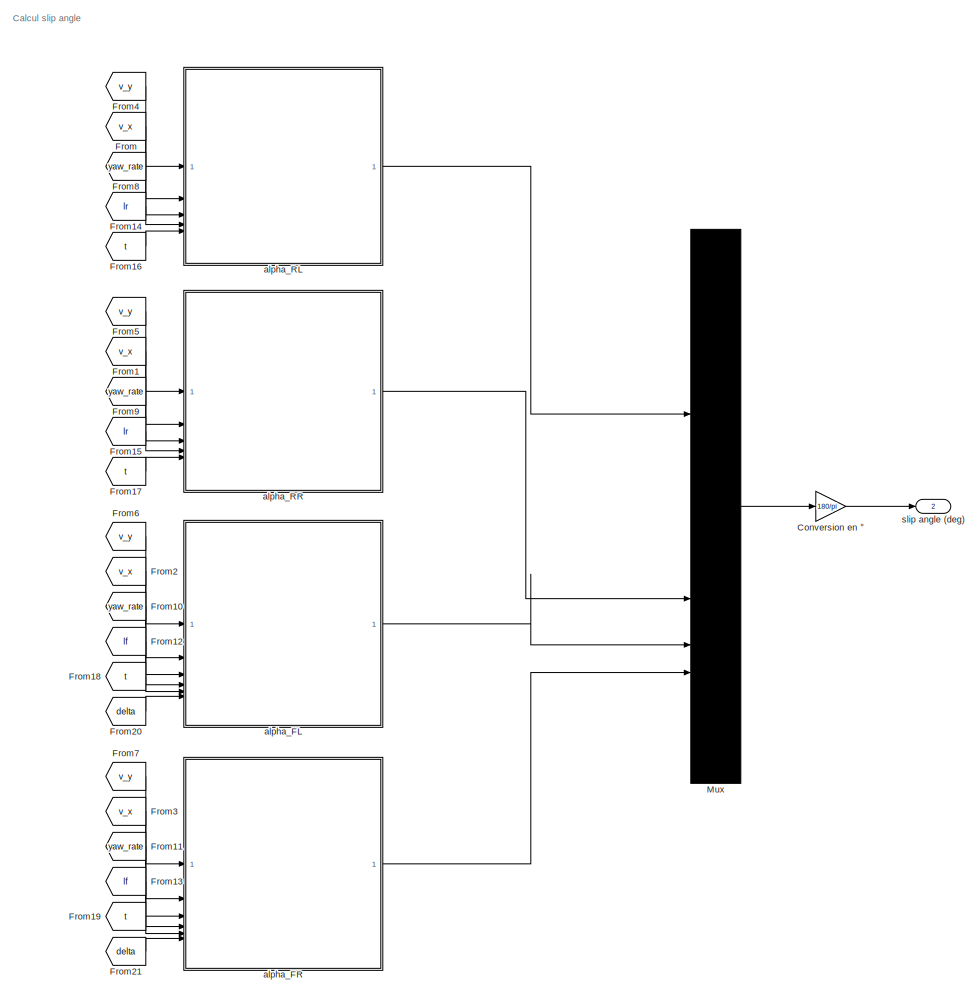
[diagram: root canvas - part 1/3, top center region]
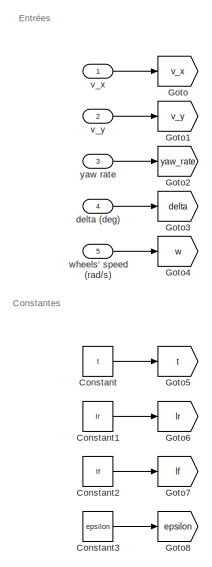
[diagram: root canvas - part 2/3, top left region]
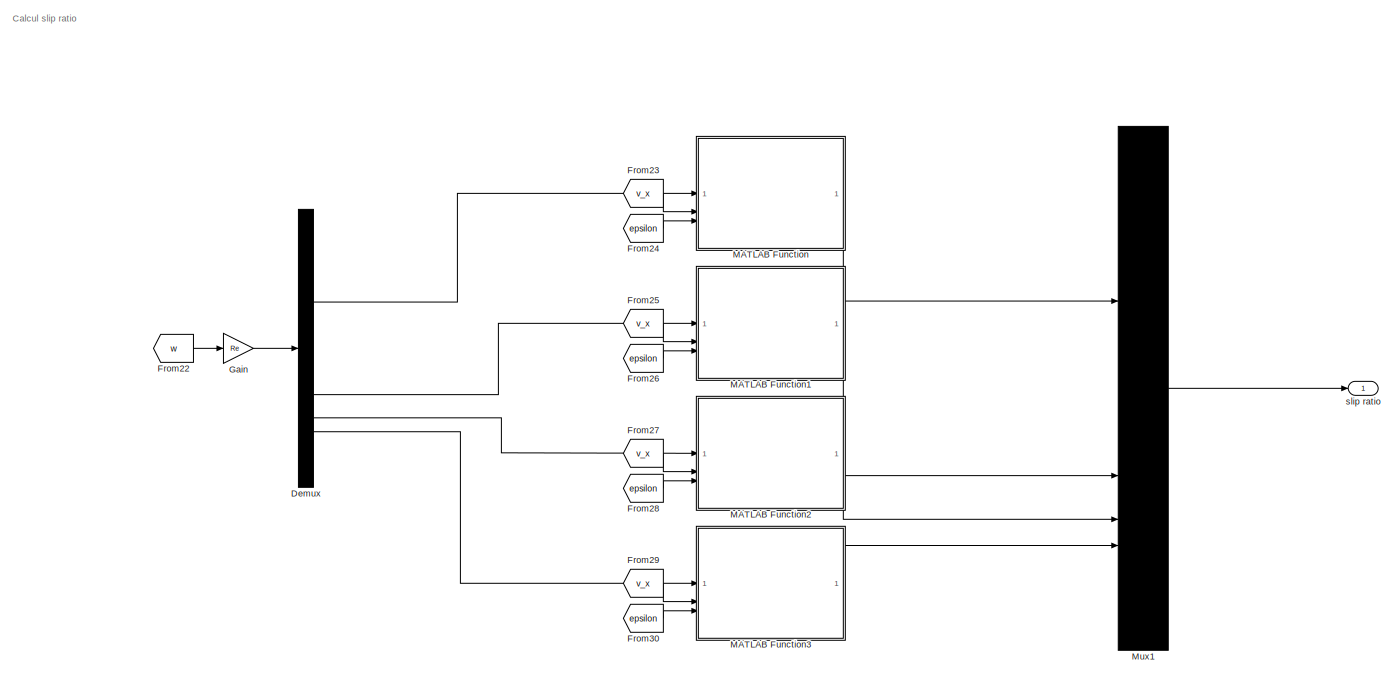
[diagram: root canvas - part 3/3, full width, bottom band]
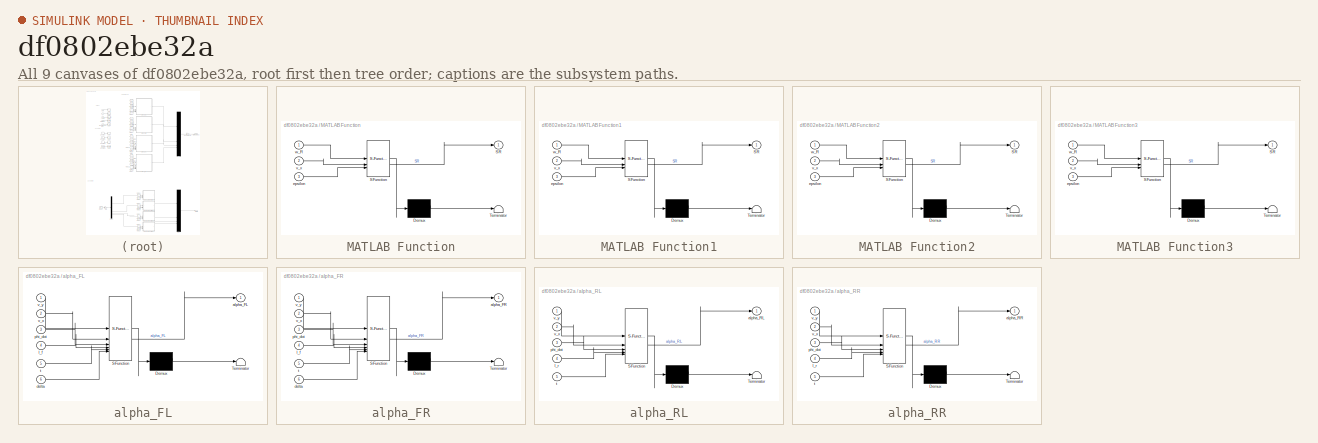
[diagram: thumbnail index - all 9 canvases of the model, root first then tree order]
MODEL slx_df0802ebe32a
KIND model
CONFIG AbsTol = auto
CONFIG EnableMultiTasking = off
CONFIG FixedStep = Ts
CONFIG MaxStep = auto
CONFIG MinStep = auto
CONFIG RelTol = 1e-3
CONFIG SampleTimeConstraint = Unconstrained
CONFIG SolverName = FixedStepDiscrete
CONFIG StartTime = 0.0
CONFIG StopTime = 10.0
BLOCK [Constant] Constant
  Value = t
BLOCK [Constant] Constant1
  Value = lr
BLOCK [Constant] Constant2
  Value = lf
BLOCK [Constant] Constant3
  Value = epsilon
BLOCK [Gain] Conversion en °
  Gain = 180/pi
BLOCK [Demux] Demux
BLOCK [From] From
  GotoTag = v_x
BLOCK [From] From1
  GotoTag = v_x
BLOCK [From] From10
  GotoTag = yaw_rate
BLOCK [From] From11
  GotoTag = yaw_rate
BLOCK [From] From12
  GotoTag = lf
BLOCK [From] From13
  GotoTag = lf
BLOCK [From] From14
  GotoTag = lr
BLOCK [From] From15
  GotoTag = lr
BLOCK [From] From16
  GotoTag = t
BLOCK [From] From17
  GotoTag = t
BLOCK [From] From18
  GotoTag = t
BLOCK [From] From19
  GotoTag = t
BLOCK [From] From2
  GotoTag = v_x
BLOCK [From] From20
  GotoTag = delta
BLOCK [From] From21
  GotoTag = delta
BLOCK [From] From22
  GotoTag = w
BLOCK [From] From23
  GotoTag = v_x
BLOCK [From] From24
  GotoTag = epsilon
BLOCK [From] From25
  GotoTag = v_x
BLOCK [From] From26
  GotoTag = epsilon
BLOCK [From] From27
  GotoTag = v_x
BLOCK [From] From28
  GotoTag = epsilon
BLOCK [From] From29
  GotoTag = v_x
BLOCK [From] From3
  GotoTag = v_x
BLOCK [From] From30
  GotoTag = epsilon
BLOCK [From] From4
  GotoTag = v_y
BLOCK [From] From5
  GotoTag = v_y
BLOCK [From] From6
  GotoTag = v_y
BLOCK [From] From7
  GotoTag = v_y
BLOCK [From] From8
  GotoTag = yaw_rate
BLOCK [From] From9
  GotoTag = yaw_rate
BLOCK [Gain] Gain
  Gain = Re
BLOCK [Goto] Goto
  GotoTag = v_x
BLOCK [Goto] Goto1
  GotoTag = v_y
BLOCK [Goto] Goto2
  GotoTag = yaw_rate
BLOCK [Goto] Goto3
  GotoTag = delta
BLOCK [Goto] Goto4
  GotoTag = w
BLOCK [Goto] Goto5
  GotoTag = t
BLOCK [Goto] Goto6
  GotoTag = lr
BLOCK [Goto] Goto7
  GotoTag = lf
BLOCK [Goto] Goto8
  GotoTag = epsilon
BLOCK [SubSystem] MATLAB Function
  ErrorFcn = Stateflow.Translate.translate
  PermitHierarchicalResolution = ExplicitOnly
  SFBlockType = MATLAB Function
  TreatAsAtomicUnit = on
BLOCK [Demux] MATLAB Function/ Demux 
  Outputs = 1
BLOCK [S-Function] MATLAB Function/ SFunction 
  EnableBusSupport = on
  FunctionName = sf_sfun
  PortCounts = [3 2]
  SFcnIsStateOwnerBlock = off
  SFunctionDeploymentMode = off
  Tag = Stateflow S-Function 5
BLOCK [Terminator] MATLAB Function/ Terminator 
BLOCK [Outport] MATLAB Function/SR
BLOCK [Inport] MATLAB Function/epsilon
  Port = 3
BLOCK [Inport] MATLAB Function/v_x
  Port = 2
BLOCK [Inport] MATLAB Function/w_R
BLOCK [SubSystem] MATLAB Function1
  ErrorFcn = Stateflow.Translate.translate
  PermitHierarchicalResolution = ExplicitOnly
  SFBlockType = MATLAB Function
  TreatAsAtomicUnit = on
BLOCK [Demux] MATLAB Function1/ Demux 
  Outputs = 1
BLOCK [S-Function] MATLAB Function1/ SFunction 
  EnableBusSupport = on
  FunctionName = sf_sfun
  PortCounts = [3 2]
  SFcnIsStateOwnerBlock = off
  SFunctionDeploymentMode = off
  Tag = Stateflow S-Function 6
BLOCK [Terminator] MATLAB Function1/ Terminator 
BLOCK [Outport] MATLAB Function1/SR
BLOCK [Inport] MATLAB Function1/epsilon
  Port = 3
BLOCK [Inport] MATLAB Function1/v_x
  Port = 2
BLOCK [Inport] MATLAB Function1/w_R
BLOCK [SubSystem] MATLAB Function2
  ErrorFcn = Stateflow.Translate.translate
  PermitHierarchicalResolution = ExplicitOnly
  SFBlockType = MATLAB Function
  TreatAsAtomicUnit = on
BLOCK [Demux] MATLAB Function2/ Demux 
  Outputs = 1
BLOCK [S-Function] MATLAB Function2/ SFunction 
  EnableBusSupport = on
  FunctionName = sf_sfun
  PortCounts = [3 2]
  SFcnIsStateOwnerBlock = off
  SFunctionDeploymentMode = off
  Tag = Stateflow S-Function 7
BLOCK [Terminator] MATLAB Function2/ Terminator 
BLOCK [Outport] MATLAB Function2/SR
BLOCK [Inport] MATLAB Function2/epsilon
  Port = 3
BLOCK [Inport] MATLAB Function2/v_x
  Port = 2
BLOCK [Inport] MATLAB Function2/w_R
BLOCK [SubSystem] MATLAB Function3
  ErrorFcn = Stateflow.Translate.translate
  PermitHierarchicalResolution = ExplicitOnly
  SFBlockType = MATLAB Function
  TreatAsAtomicUnit = on
BLOCK [Demux] MATLAB Function3/ Demux 
  Outputs = 1
BLOCK [S-Function] MATLAB Function3/ SFunction 
  EnableBusSupport = on
  FunctionName = sf_sfun
  PortCounts = [3 2]
  SFcnIsStateOwnerBlock = off
  SFunctionDeploymentMode = off
  Tag = Stateflow S-Function 8
BLOCK [Terminator] MATLAB Function3/ Terminator 
BLOCK [Outport] MATLAB Function3/SR
BLOCK [Inport] MATLAB Function3/epsilon
  Port = 3
BLOCK [Inport] MATLAB Function3/v_x
  Port = 2
BLOCK [Inport] MATLAB Function3/w_R
BLOCK [Mux] Mux
  DisplayOption = bar
BLOCK [Mux] Mux1
  DisplayOption = bar
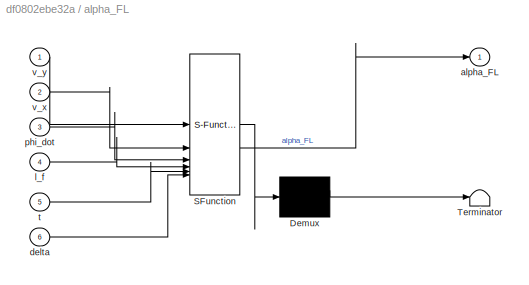
BLOCK [SubSystem] alpha_FL
  ErrorFcn = Stateflow.Translate.translate
  PermitHierarchicalResolution = ExplicitOnly
  SFBlockType = MATLAB Function
  TreatAsAtomicUnit = on
BLOCK [Demux] alpha_FL/ Demux 
  Outputs = 1
BLOCK [S-Function] alpha_FL/ SFunction 
  EnableBusSupport = on
  FunctionName = sf_sfun
  PortCounts = [6 2]
  SFcnIsStateOwnerBlock = off
  SFunctionDeploymentMode = off
  Tag = Stateflow S-Function 3
BLOCK [Terminator] alpha_FL/ Terminator 
BLOCK [Outport] alpha_FL/alpha_FL
BLOCK [Inport] alpha_FL/delta
  Port = 6
BLOCK [Inport] alpha_FL/l_f
  Port = 4
BLOCK [Inport] alpha_FL/phi_dot
  Port = 3
BLOCK [Inport] alpha_FL/t
  Port = 5
BLOCK [Inport] alpha_FL/v_x
  Port = 2
BLOCK [Inport] alpha_FL/v_y
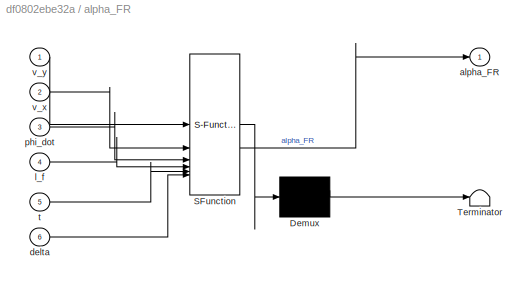
BLOCK [SubSystem] alpha_FR
  ErrorFcn = Stateflow.Translate.translate
  PermitHierarchicalResolution = ExplicitOnly
  SFBlockType = MATLAB Function
  TreatAsAtomicUnit = on
BLOCK [Demux] alpha_FR/ Demux 
  Outputs = 1
BLOCK [S-Function] alpha_FR/ SFunction 
  EnableBusSupport = on
  FunctionName = sf_sfun
  PortCounts = [6 2]
  SFcnIsStateOwnerBlock = off
  SFunctionDeploymentMode = off
  Tag = Stateflow S-Function 4
BLOCK [Terminator] alpha_FR/ Terminator 
BLOCK [Outport] alpha_FR/alpha_FR
BLOCK [Inport] alpha_FR/delta
  Port = 6
BLOCK [Inport] alpha_FR/l_f
  Port = 4
BLOCK [Inport] alpha_FR/phi_dot
  Port = 3
BLOCK [Inport] alpha_FR/t
  Port = 5
BLOCK [Inport] alpha_FR/v_x
  Port = 2
BLOCK [Inport] alpha_FR/v_y
BLOCK [SubSystem] alpha_RL
  ErrorFcn = Stateflow.Translate.translate
  PermitHierarchicalResolution = ExplicitOnly
  SFBlockType = MATLAB Function
  TreatAsAtomicUnit = on
BLOCK [Demux] alpha_RL/ Demux 
  Outputs = 1
BLOCK [S-Function] alpha_RL/ SFunction 
  EnableBusSupport = on
  FunctionName = sf_sfun
  PortCounts = [5 2]
  SFcnIsStateOwnerBlock = off
  SFunctionDeploymentMode = off
  Tag = Stateflow S-Function 2
BLOCK [Terminator] alpha_RL/ Terminator 
BLOCK [Outport] alpha_RL/alpha_RL
BLOCK [Inport] alpha_RL/l_r
  Port = 4
BLOCK [Inport] alpha_RL/phi_dot
  Port = 3
BLOCK [Inport] alpha_RL/t
  Port = 5
BLOCK [Inport] alpha_RL/v_x
  Port = 2
BLOCK [Inport] alpha_RL/v_y
BLOCK [SubSystem] alpha_RR
  ErrorFcn = Stateflow.Translate.translate
  PermitHierarchicalResolution = ExplicitOnly
  SFBlockType = MATLAB Function
  TreatAsAtomicUnit = on
BLOCK [Demux] alpha_RR/ Demux 
  Outputs = 1
BLOCK [S-Function] alpha_RR/ SFunction 
  EnableBusSupport = on
  FunctionName = sf_sfun
  PortCounts = [5 2]
  SFcnIsStateOwnerBlock = off
  SFunctionDeploymentMode = off
  Tag = Stateflow S-Function 1
BLOCK [Terminator] alpha_RR/ Terminator 
BLOCK [Outport] alpha_RR/alpha_RR
BLOCK [Inport] alpha_RR/l_r
  Port = 4
BLOCK [Inport] alpha_RR/phi_dot
  Port = 3
BLOCK [Inport] alpha_RR/t
  Port = 5
BLOCK [Inport] alpha_RR/v_x
  Port = 2
BLOCK [Inport] alpha_RR/v_y
BLOCK [Inport] delta (deg)
  Port = 4
BLOCK [Outport] slip angle (deg)
  Port = 2
BLOCK [Outport] slip ratio
BLOCK [Inport] v_x
BLOCK [Inport] v_y
  Port = 2
BLOCK [Inport] wheels' speed (rad//s)
  Port = 5
BLOCK [Inport] yaw rate
  Port = 3
ANNOTATION (root): Calcul slip angle
ANNOTATION (root): Calcul slip ratio
ANNOTATION (root): Constantes
ANNOTATION (root): Entrées
LINE Constant1:1 -> Goto6:1
LINE Constant2:1 -> Goto7:1
LINE Constant3:1 -> Goto8:1
LINE Constant:1 -> Goto5:1
LINE Conversion en °:1 -> slip angle (deg):1
LINE Demux:1 -> MATLAB Function:1
LINE Demux:2 -> MATLAB Function1:1
LINE Demux:3 -> MATLAB Function2:1
LINE Demux:4 -> MATLAB Function3:1
LINE From10:1 -> alpha_FL:3
LINE From11:1 -> alpha_FR:3
LINE From12:1 -> alpha_FL:4
LINE From13:1 -> alpha_FR:4
LINE From14:1 -> alpha_RL:4
LINE From15:1 -> alpha_RR:4
LINE From16:1 -> alpha_RL:5
LINE From17:1 -> alpha_RR:5
LINE From18:1 -> alpha_FL:5
LINE From19:1 -> alpha_FR:5
LINE From1:1 -> alpha_RR:2
LINE From20:1 -> alpha_FL:6
LINE From21:1 -> alpha_FR:6
LINE From22:1 -> Gain:1
LINE From23:1 -> MATLAB Function:2
LINE From24:1 -> MATLAB Function:3
LINE From25:1 -> MATLAB Function1:2
LINE From26:1 -> MATLAB Function1:3
LINE From27:1 -> MATLAB Function2:2
LINE From28:1 -> MATLAB Function2:3
LINE From29:1 -> MATLAB Function3:2
LINE From2:1 -> alpha_FL:2
LINE From30:1 -> MATLAB Function3:3
LINE From3:1 -> alpha_FR:2
LINE From4:1 -> alpha_RL:1
LINE From5:1 -> alpha_RR:1
LINE From6:1 -> alpha_FL:1
LINE From7:1 -> alpha_FR:1
LINE From8:1 -> alpha_RL:3
LINE From9:1 -> alpha_RR:3
LINE From:1 -> alpha_RL:2
LINE Gain:1 -> Demux:1
LINE MATLAB Function1:1 -> Mux1:2
LINE MATLAB Function2:1 -> Mux1:3
LINE MATLAB Function3:1 -> Mux1:4
LINE MATLAB Function:1 -> Mux1:1
LINE Mux1:1 -> slip ratio:1
LINE Mux:1 -> Conversion en °:1
LINE alpha_FL:1 -> Mux:3
LINE alpha_FR:1 -> Mux:4
LINE alpha_RL:1 -> Mux:1
LINE alpha_RR:1 -> Mux:2
LINE delta (deg):1 -> Goto3:1
LINE v_x:1 -> Goto:1
LINE v_y:1 -> Goto1:1
LINE wheels' speed (rad//s):1 -> Goto4:1
LINE yaw rate:1 -> Goto2:1
CHART alpha_RR states=1 transitions=1
  STATE_LABEL 'eML_blk_kernel()'
  STATE_LABEL 'SCRIPT:\nfunction alpha_RR = fcn(v_y,v_x,phi_dot,l_r,t)\n\nalpha_RR = (v_y-phi_dot*l_r)/(v_x+phi_dot*t/2);\nend\n'
CHART alpha_RL states=1 transitions=1
  STATE_LABEL 'eML_blk_kernel()'
  STATE_LABEL 'SCRIPT:\nfunction alpha_RL = fcn(v_y,v_x,phi_dot,l_r,t)\n\nalpha_RL = (v_y-phi_dot*l_r)/(v_x-phi_dot*t/2);\nend\n'
CHART alpha_FL states=1 transitions=1
  STATE_LABEL 'eML_blk_kernel()'
  STATE_LABEL 'SCRIPT:\nfunction alpha_FL = fcn(v_y,v_x,phi_dot,l_f,t,delta)\n\nalpha_FL = (v_y+phi_dot*l_f)/(v_x-phi_dot*t/2) - delta*pi/180;\nend\n'
CHART alpha_FR states=1 transitions=1
  STATE_LABEL 'eML_blk_kernel()'
  STATE_LABEL 'SCRIPT:\nfunction alpha_FR = fcn(v_y,v_x,phi_dot,l_f,t,delta)\n\nalpha_FR = (v_y+phi_dot*l_f)/(v_x+phi_dot*t/2) - delta*pi/180;\nend\n'
CHART MATLAB Function states=1 transitions=1
  STATE_LABEL 'eML_blk_kernel()'
  STATE_LABEL 'SCRIPT:\nfunction SR = fcn(w_R,v_x,epsilon)\n\nSR=(w_R-v_x)/(v_x+epsilon);\n'
CHART MATLAB Function1 states=1 transitions=1
  STATE_LABEL 'eML_blk_kernel()'
  STATE_LABEL 'SCRIPT:\nfunction SR = fcn(w_R,v_x,epsilon)\n\nSR=(w_R-v_x)/(v_x+epsilon);\n'
CHART MATLAB Function2 states=1 transitions=1
  STATE_LABEL 'eML_blk_kernel()'
  STATE_LABEL 'SCRIPT:\nfunction SR = fcn(w_R,v_x,epsilon)\n\nSR=(w_R-v_x)/(v_x+epsilon);\n'
CHART MATLAB Function3 states=1 transitions=1
  STATE_LABEL 'eML_blk_kernel()'
  STATE_LABEL 'SCRIPT:\nfunction SR = fcn(w_R,v_x,epsilon)\n\nSR=(w_R-v_x)/(v_x+epsilon);\n'
CHART  states=0 transitions=0
CHART  states=0 transitions=0
CHART  states=0 transitions=0
CHART  states=0 transitions=0
CHART  states=0 transitions=0
CHART  states=0 transitions=0
CHART  states=0 transitions=0
CHART  states=0 transitions=0
